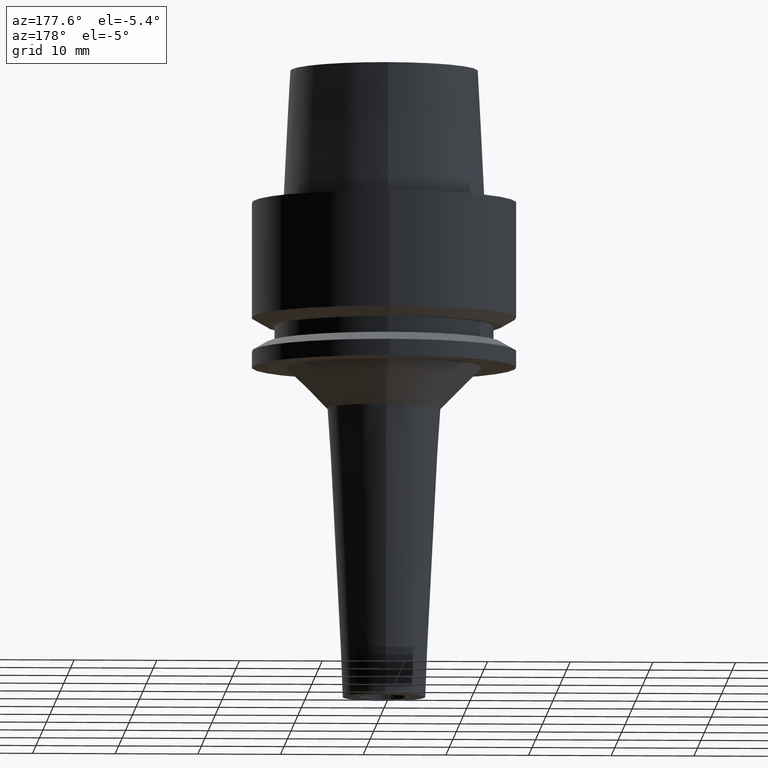
[diagram: clean part render]
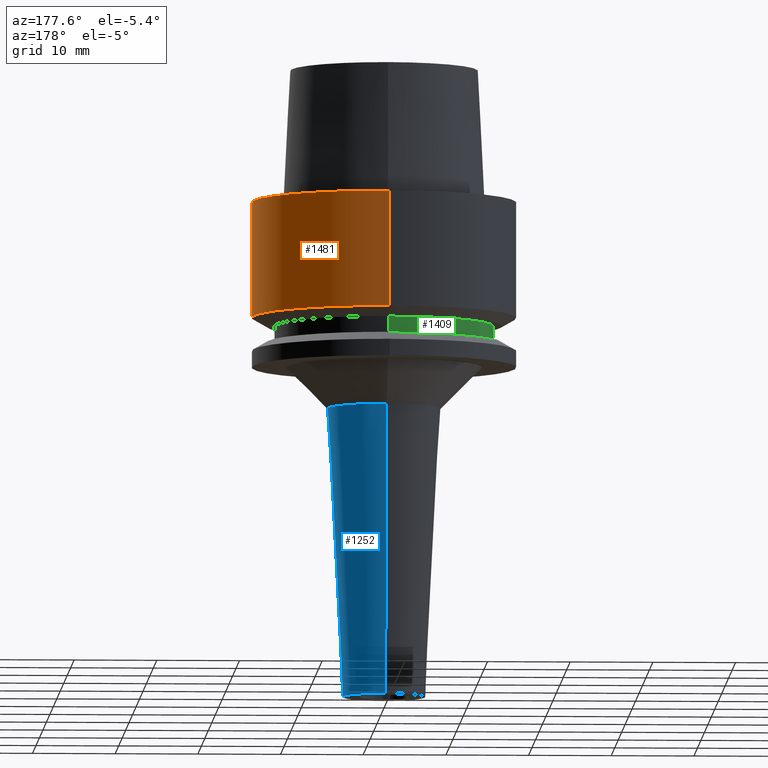
[diagram: same view with three faces highlighted in distinct colors, each labeled with its STEP entity id]
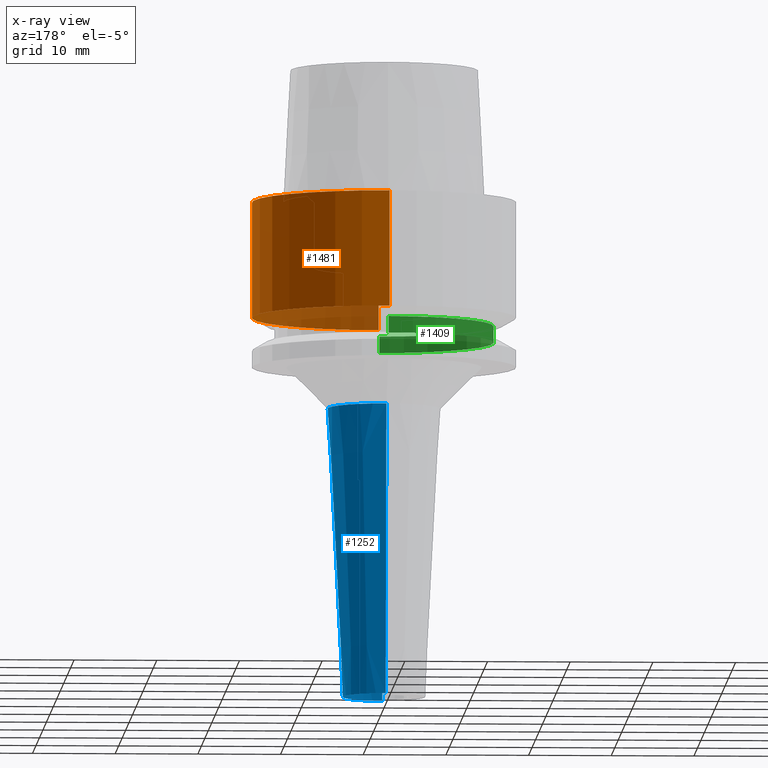
[diagram: x-ray of the same camera — body ghosted, the three highlighted faces saturated]
A machine part, auxiliary view with three faces highlighted in distinct colors.
The next image is the same camera in x-ray (body ghosted, the three faces saturated) — at least one of them is partly hidden behind the body in this view.
Their STEP definitions:

[orange] entity #1481 — the highlighted cylindrical surface (partial cylindrical patch) has radius 16 mm, axis along (0, 0, -1).
#651=CARTESIAN_POINT('',(0.E0,1.047199923065E-14,-1.397927405784E1));
#652=DIRECTION('',(0.E0,0.E0,1.E0));
#653=DIRECTION('',(0.E0,-1.E0,0.E0));
#654=AXIS2_PLACEMENT_3D('',#651,#652,#653);
#674=DIRECTION('',(0.E0,6.760163901580E-14,-1.E0));
#675=VECTOR('',#674,1.397927405784E1);
#676=CARTESIAN_POINT('',(0.E0,-1.6E1,2.605323364454E-14));
#677=LINE('',#676,#675);
#681=DIRECTION('',(0.E0,-6.798285126589E-14,-1.E0));
#682=VECTOR('',#681,1.397927405784E1);
#683=CARTESIAN_POINT('',(0.E0,1.6E1,2.605323364454E-14));
#684=LINE('',#683,#682);
#696=CARTESIAN_POINT('',(0.E0,1.467126865379E-14,4.263256414561E-14));
#697=DIRECTION('',(0.E0,0.E0,-1.E0));
#698=DIRECTION('',(0.E0,1.E0,0.E0));
#699=AXIS2_PLACEMENT_3D('',#696,#697,#698);
#824=CARTESIAN_POINT('',(0.E0,1.6E1,-1.397927405784E1));
#825=VERTEX_POINT('',#824);
#826=CARTESIAN_POINT('',(0.E0,-1.6E1,-1.397927405784E1));
#827=VERTEX_POINT('',#826);
#828=CARTESIAN_POINT('',(0.E0,1.6E1,2.605323364454E-14));
#829=VERTEX_POINT('',#828);
#830=CARTESIAN_POINT('',(0.E0,-1.6E1,4.263256414561E-14));
#831=VERTEX_POINT('',#830);
#1469=CARTESIAN_POINT('',(0.E0,1.467126865379E-14,1.98E1));
#1470=DIRECTION('',(0.E0,0.E0,-1.E0));
#1471=DIRECTION('',(0.E0,-1.E0,0.E0));
#1472=AXIS2_PLACEMENT_3D('',#1469,#1470,#1471);
#1473=CYLINDRICAL_SURFACE('',#1472,1.6E1);
#1474=ORIENTED_EDGE('',*,*,#1459,.T.);
#1475=ORIENTED_EDGE('',*,*,#1436,.F.);
#1476=ORIENTED_EDGE('',*,*,#1463,.F.);
#1478=ORIENTED_EDGE('',*,*,#1477,.F.);
#1479=EDGE_LOOP('',(#1474,#1475,#1476,#1478));
#1480=FACE_OUTER_BOUND('',#1479,.F.);
#655=CIRCLE('',#654,1.6E1);
#700=CIRCLE('',#699,1.6E1);
#1436=EDGE_CURVE('',#827,#825,#655,.T.);
#1459=EDGE_CURVE('',#829,#825,#684,.T.);
#1463=EDGE_CURVE('',#831,#827,#677,.T.);
#1477=EDGE_CURVE('',#829,#831,#700,.T.);
#1481=ADVANCED_FACE('',(#1480),#1473,.T.);

[blue] entity #1252 — the highlighted conical surface has half-angle 3 deg.
#414=CARTESIAN_POINT('',(0.E0,0.E0,-6.E1));
#415=DIRECTION('',(0.E0,0.E0,1.E0));
#416=DIRECTION('',(0.E0,-1.E0,0.E0));
#417=AXIS2_PLACEMENT_3D('',#414,#415,#416);
#446=DIRECTION('',(0.E0,-5.233595624294E-2,-9.986295347546E-1));
#447=VECTOR('',#446,3.504803210993E1);
#448=CARTESIAN_POINT('',(0.E0,6.834272274906E0,-2.5E1));
#449=LINE('',#448,#447);
#453=CARTESIAN_POINT('',(0.E0,0.E0,-2.5E1));
#454=DIRECTION('',(0.E0,0.E0,1.E0));
#455=DIRECTION('',(0.E0,-1.E0,0.E0));
#456=AXIS2_PLACEMENT_3D('',#453,#454,#455);
#461=DIRECTION('',(0.E0,5.233595624294E-2,-9.986295347546E-1));
#462=VECTOR('',#461,3.504803210993E1);
#463=CARTESIAN_POINT('',(0.E0,-6.834272274906E0,-2.5E1));
#464=LINE('',#463,#462);
#788=CARTESIAN_POINT('',(0.E0,-5.E0,-6.E1));
#789=CARTESIAN_POINT('',(0.E0,5.E0,-6.E1));
#790=VERTEX_POINT('',#788);
#791=VERTEX_POINT('',#789);
#792=CARTESIAN_POINT('',(0.E0,6.834272274906E0,-2.5E1));
#793=VERTEX_POINT('',#792);
#794=CARTESIAN_POINT('',(0.E0,-6.834272274906E0,-2.5E1));
#795=VERTEX_POINT('',#794);
#1238=CARTESIAN_POINT('',(0.E0,0.E0,-4.25E1));
#1239=DIRECTION('',(0.E0,0.E0,1.E0));
#1240=DIRECTION('',(0.E0,1.E0,0.E0));
#1241=AXIS2_PLACEMENT_3D('',#1238,#1239,#1240);
#1242=CONICAL_SURFACE('',#1241,5.917136137453E0,3.E0);
#1244=ORIENTED_EDGE('',*,*,#1243,.T.);
#1245=ORIENTED_EDGE('',*,*,#1227,.F.);
#1247=ORIENTED_EDGE('',*,*,#1246,.F.);
#1249=ORIENTED_EDGE('',*,*,#1248,.T.);
#1250=EDGE_LOOP('',(#1244,#1245,#1247,#1249));
#1251=FACE_OUTER_BOUND('',#1250,.F.);
#418=CIRCLE('',#417,5.E0);
#457=CIRCLE('',#456,6.834272274906E0);
#1227=EDGE_CURVE('',#790,#791,#418,.T.);
#1243=EDGE_CURVE('',#793,#791,#449,.T.);
#1246=EDGE_CURVE('',#795,#790,#464,.T.);
#1248=EDGE_CURVE('',#795,#793,#457,.T.);
#1252=ADVANCED_FACE('',(#1251),#1242,.T.);

[green] entity #1409 — the highlighted cylindrical surface (partial cylindrical patch) has radius 13.25 mm, axis along (0, 0, -1).
#590=CARTESIAN_POINT('',(0.E0,1.467126865379E-14,-1.7E1));
#591=DIRECTION('',(0.E0,0.E0,1.E0));
#592=DIRECTION('',(0.E0,1.E0,0.E0));
#593=AXIS2_PLACEMENT_3D('',#590,#591,#592);
#598=DIRECTION('',(0.E0,0.E0,-1.E0));
#599=VECTOR('',#598,2.E0);
#600=CARTESIAN_POINT('',(0.E0,1.325E1,-1.5E1));
#601=LINE('',#600,#599);
#605=DIRECTION('',(0.E0,0.E0,-1.E0));
#606=VECTOR('',#605,2.E0);
#607=CARTESIAN_POINT('',(0.E0,-1.325E1,-1.5E1));
#608=LINE('',#607,#606);
#628=CARTESIAN_POINT('',(0.E0,1.467126865379E-14,-1.5E1));
#629=DIRECTION('',(0.E0,0.E0,-1.E0));
#630=DIRECTION('',(0.E0,-1.E0,0.E0));
#631=AXIS2_PLACEMENT_3D('',#628,#629,#630);
#812=CARTESIAN_POINT('',(0.E0,-1.325E1,-1.7E1));
#813=CARTESIAN_POINT('',(0.E0,1.325E1,-1.7E1));
#814=VERTEX_POINT('',#812);
#815=VERTEX_POINT('',#813);
#816=CARTESIAN_POINT('',(0.E0,1.325E1,-1.5E1));
#817=VERTEX_POINT('',#816);
#818=CARTESIAN_POINT('',(0.E0,-1.325E1,-1.5E1));
#819=VERTEX_POINT('',#818);
#1397=CARTESIAN_POINT('',(0.E0,1.467126865379E-14,1.98E1));
#1398=DIRECTION('',(0.E0,0.E0,-1.E0));
#1399=DIRECTION('',(0.E0,-1.E0,0.E0));
#1400=AXIS2_PLACEMENT_3D('',#1397,#1398,#1399);
#1401=CYLINDRICAL_SURFACE('',#1400,1.325E1);
#1402=ORIENTED_EDGE('',*,*,#1387,.F.);
#1404=ORIENTED_EDGE('',*,*,#1403,.F.);
#1405=ORIENTED_EDGE('',*,*,#1390,.T.);
#1406=ORIENTED_EDGE('',*,*,#1377,.F.);
#1407=EDGE_LOOP('',(#1402,#1404,#1405,#1406));
#1408=FACE_OUTER_BOUND('',#1407,.F.);
#594=CIRCLE('',#593,1.325E1);
#632=CIRCLE('',#631,1.325E1);
#1377=EDGE_CURVE('',#815,#814,#594,.T.);
#1387=EDGE_CURVE('',#817,#815,#601,.T.);
#1390=EDGE_CURVE('',#819,#814,#608,.T.);
#1403=EDGE_CURVE('',#819,#817,#632,.T.);
#1409=ADVANCED_FACE('',(#1408),#1401,.T.);